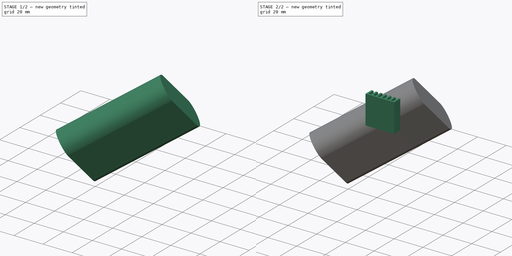
[diagram: build sequence overview — one tinted view per stage of 2, left to right]
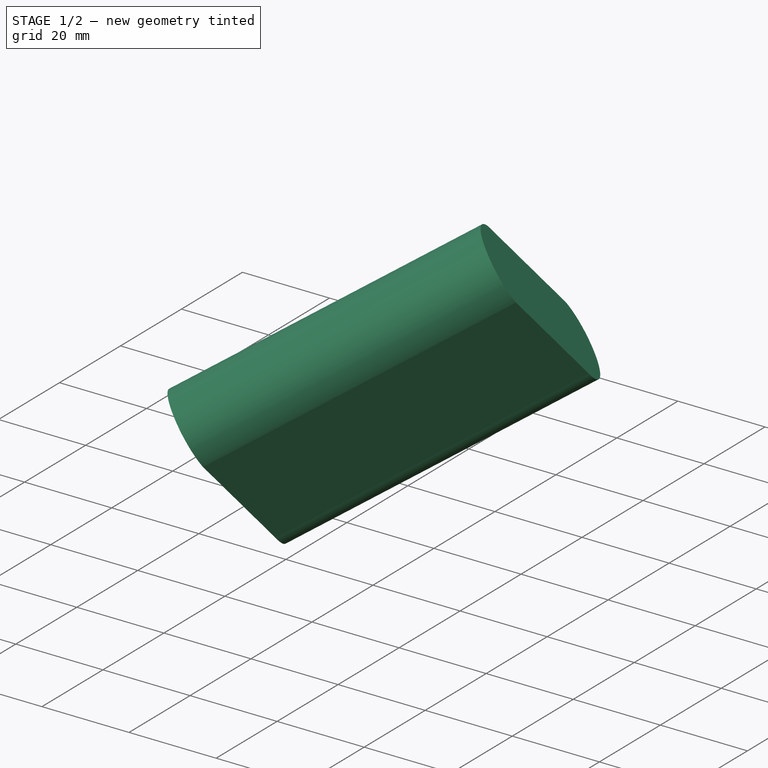
[diagram: stage 1 of 2 — iso view after this stage's code; geometry added in this stage tinted green]
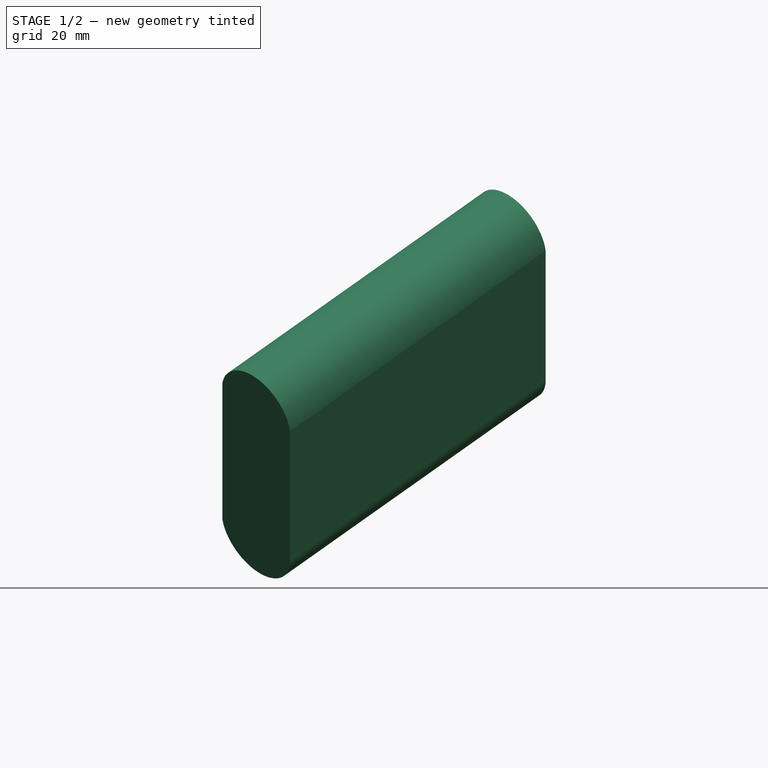
[diagram: stage 1 of 2 — front view after this stage's code; geometry added in this stage tinted green]
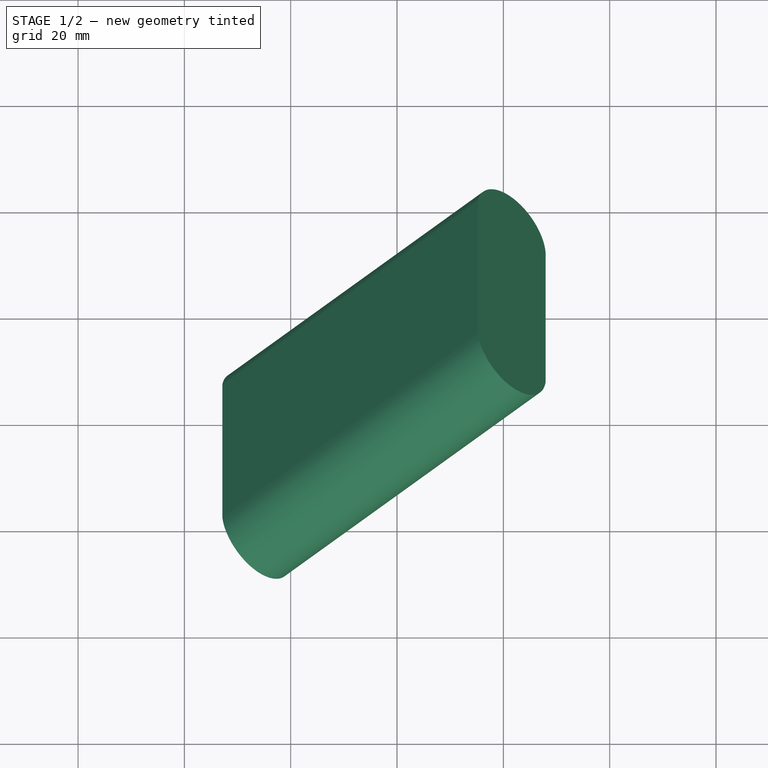
[diagram: stage 1 of 2 — top view after this stage's code; geometry added in this stage tinted green]
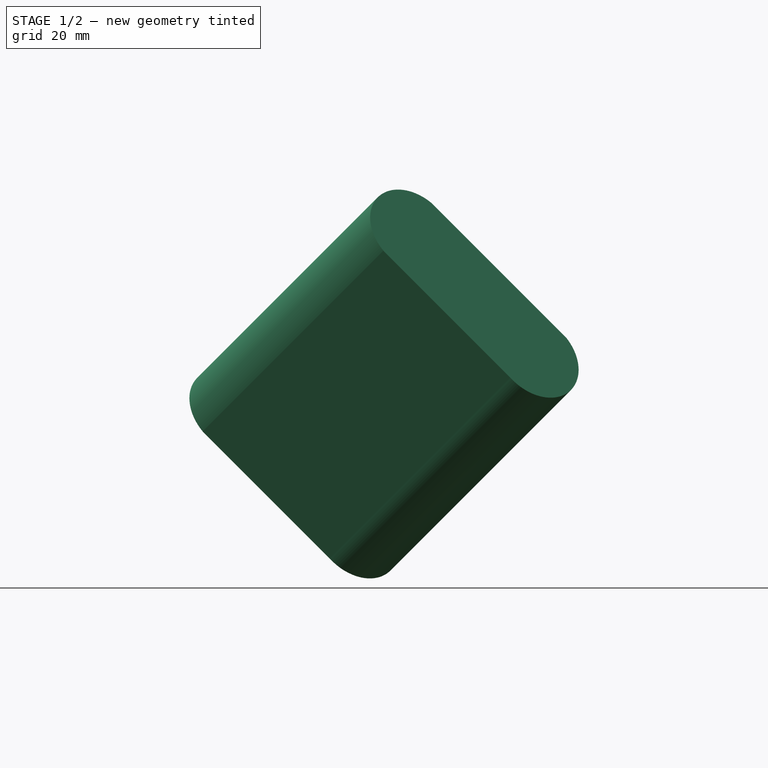
[diagram: stage 1 of 2 — right view after this stage's code; geometry added in this stage tinted green]
FCSTD DOCUMENT  (FreeCAD 0.16R5750 (Git))
Label: smallParts
License: All rights reserved
LicenseURL: http://en.wikipedia.org/wiki/All_rights_reserved
objects: Sketcher::SketchObject×4, PartDesign::Pad×2, Drawing::FeatureViewAnnotation×1, Drawing::FeaturePage×1, Part::Sweep×1, Part::Compound×1
note: 10 computed .brp shape members not serialized (recipe doc carries the construction recipe); baked Part::Feature solids carry a one-line shape summary decoded from their .brp

FEATURE [Sketcher::SketchObject] Sketch002  label="batteryProfile"
  Placement = pos=(0,0,-40) rot=(0,0,1;0rad)
  sketch-geometry (5):
    g0: ArcOfCircle CenterX=36.0797 CenterY=25.76 CenterZ=0 NormalX=0 NormalY=0 NormalZ=1 Radius=9.08394 StartAngle=1.70685 EndAngle=4.57634
    g1: ArcOfCircle CenterX=69.2305 CenterY=25.8211 CenterZ=0 NormalX=0 NormalY=0 NormalZ=1 Radius=9.08394 StartAngle=4.64154 EndAngle=7.67501
    g2: LineSegment StartX=34.8476 StartY=34.76 StartZ=0 EndX=70.8476 EndY=34.76 EndZ=0
    g3: LineSegment StartX=34.8476 StartY=16.76 StartZ=0 EndX=68.5874 EndY=16.76 EndZ=0
    g4: LineSegment [constr] StartX=34.8476 StartY=34.76 StartZ=0 EndX=34.8476 EndY=16.76 EndZ=0
  constraints (12):
    c: Coincident(g2,g0)
    c: Coincident(g2,g1)
    c: Coincident(g3,g0)
    c: Coincident(g3,g1)
    c: Equal(g0,g1)
    c: Horizontal(g2)
    c: Horizontal(g3)
    c: DistanceX(g2) = 36
    c: Coincident(g4,g0)
    c: Coincident(g4,g0)
    c: Vertical(g4)
    c: DistanceY(g4) = -18
FEATURE [Drawing::FeatureViewAnnotation] Annotation  label="DesignAnnotation"
  Font = Sans
  Rotation = 0
  Scale = 7
  Text = This project uses the Olimex Olinuxino board A10 Lime. | The Battery connector can be viewed in  the Eagle schematics. It is called LIPO_BAT | package: DW02R | library: Penko | Value:  CON2DW02R | annotation: CI01 Series 2.00 mm DIP Headers
  ViewResult = <g transform="translate(10,10) rotate(0)">\n<text id="DesignAnnotation"\n font-family="Sans"\n font-size="7"\n fill="#000000">\n<tspan x="0" dy="1em">This project uses the Olimex Olinuxino board A10 Lime.</tspan>\n<tspan x="0" dy="1em">The Battery connector can be viewed in  the Eagle schematics. It is called LIPO_BAT</tspan>\n<tspan x="0" dy="1em">package: DW02R</tspan>\n<tspan x="0" dy="1em">library: Penko</tspan>\n<tspan x="0" dy="1em">Value:  CON2DW02R</tspan>\n<tspan x="0" dy="1em">annotation: CI01 Series 2.00 mm DIP Headers</tspan>\n</text>\n</g>
  Visible = true
  X = 10
  Y = 10
FEATURE [Drawing::FeaturePage] Page
  EditableTexts = AUTHOR NAME | CREATION DATE | SUPERVISOR NAME | CHECK DATE | SCALE | WEIGHT | NUMBER | SHEET | TITLE | SUBTITLE
  Group = -> [Annotation]
FEATURE [Sketcher::SketchObject] Sketch004  label="CablePath"
  Placement = pos=(0,0,0) rot=(1,0,0;1.5708rad)
  sketch-geometry (12):
    g0: LineSegment [constr] StartX=62.3758 StartY=-39.9996 StartZ=0 EndX=74.8429 EndY=-39.9996 EndZ=0
    g1: LineSegment StartX=67.7164 StartY=-39.9996 StartZ=0 EndX=67.7164 EndY=-44.9104 EndZ=0
    g2: LineSegment StartX=68.7948 StartY=-49.6199 StartZ=0 EndX=71.192 EndY=-54.5798 EndZ=0
    g3: LineSegment StartX=72.0318 StartY=-58.2471 StartZ=0 EndX=72.0318 EndY=-64.9369 EndZ=0
    g4: ArcOfCircle CenterX=63.6044 CenterY=-58.2471 CenterZ=0 NormalX=0 NormalY=0 NormalZ=1 Radius=8.42743 StartAngle=0 EndAngle=0.450213
    g5: ArcOfCircle CenterX=78.539 CenterY=-44.9104 CenterZ=0 NormalX=0 NormalY=0 NormalZ=1 Radius=10.8226 StartAngle=3.14159 EndAngle=3.59181
    g6: LineSegment StartX=71.7163 StartY=-68.3984 StartZ=0 EndX=71.2874 EndY=-70.7314 EndZ=0
    g7: LineSegment StartX=70.1427 StartY=-74.8764 StartZ=0 EndX=68.0587 EndY=-80.4628 EndZ=0
    g8: LineSegment StartX=67.6208 StartY=-82.8894 StartZ=0 EndX=67.6208 EndY=-86.5021 EndZ=0
    g9: ArcOfCircle CenterX=52.887 CenterY=-64.9369 CenterZ=0 NormalX=0 NormalY=0 NormalZ=1 Radius=19.1448 StartAngle=6.10138 EndAngle=6.28319
    g10: ArcOfCircle CenterX=47.1251 CenterY=-66.2896 CenterZ=0 NormalX=0 NormalY=0 NormalZ=1 Radius=24.5671 StartAngle=5.92612 EndAngle=6.10138
    g11: ArcOfCircle CenterX=74.5634 CenterY=-82.8894 CenterZ=0 NormalX=0 NormalY=0 NormalZ=1 Radius=6.94256 StartAngle=2.78453 EndAngle=3.14159
  constraints (14):
    c: Horizontal(g0)
    c: Vertical(g1)
    c: Vertical(g3)
    c: Tangent(g2,g4) = 1.5708
    c: Tangent(g3,g4) = 1.5708
    c: Tangent(g1,g5) = -1.5708
    c: Tangent(g2,g5) = -1.5708
    c: Vertical(g8)
    c: Tangent(g6,g9) = 1.5708
    c: Tangent(g3,g9) = 1.5708
    c: Tangent(g7,g10) = 1.5708
    c: Tangent(g6,g10) = 1.5708
    c: Tangent(g8,g11) = -1.5708
    c: Tangent(g7,g11) = -1.5708
FEATURE [Sketcher::SketchObject] Sketch  label="CableCrossSection"
  Placement = pos=(0,0,-40) rot=(0,0,1;0rad)
  sketch-geometry (1):
    g0: Circle CenterX=67.7618 CenterY=25.497 CenterZ=0 NormalX=0 NormalY=0 NormalZ=1 Radius=0.7
  constraints (1):
    c: Radius(g0) = 0.7  'cableSectionRadius'
FEATURE [Part::Sweep] Sweep  label="CableRed"
  Frenet = false
  Sections = -> [Sketch]
  Solid = false
  Spine = -> Sketch004
  Transition = 1
FEATURE [PartDesign::Pad] Pad001  label="batteryBody"
  Length = 68
  Length2 = 100
  Placement = pos=(0,0,-40) rot=(0,0,1;0rad)
  Sketch = -> Sketch002
  Type = 0
FEATURE [Part::Compound] Compound  label="Battery"
  Links = -> [Pad001,Sketch004,Sweep,Sketch]
  Placement = pos=(0,0,0) rot=(0,0.707107,0.707107;1.5708rad)
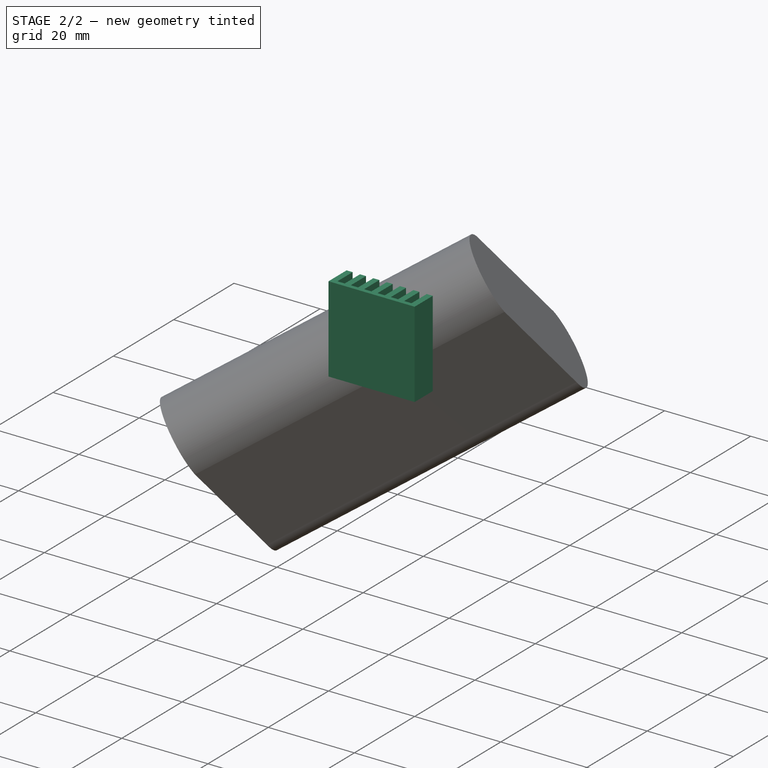
[diagram: stage 2 of 2 — iso view after this stage's code; geometry added in this stage tinted green]
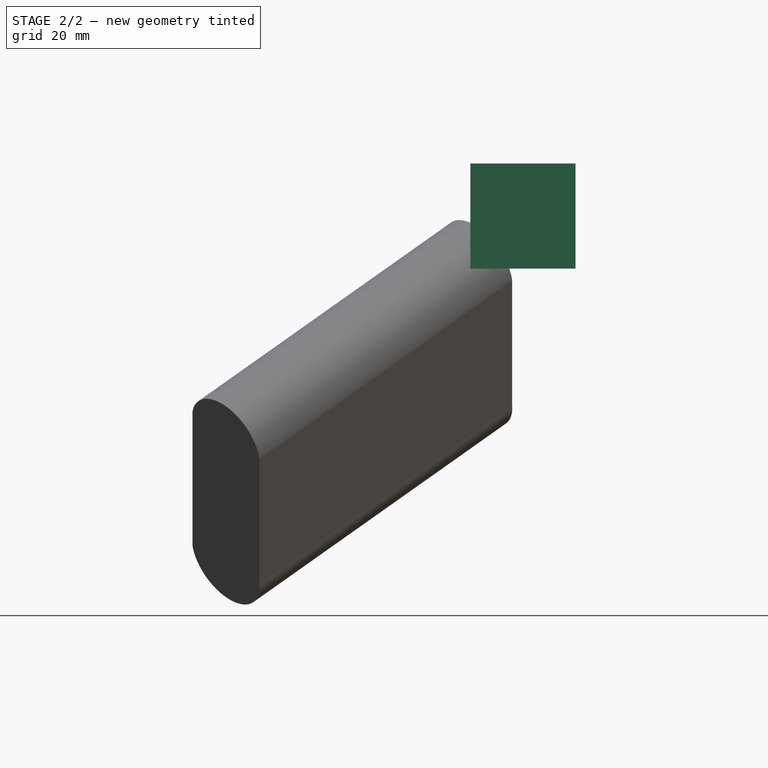
[diagram: stage 2 of 2 — front view after this stage's code; geometry added in this stage tinted green]
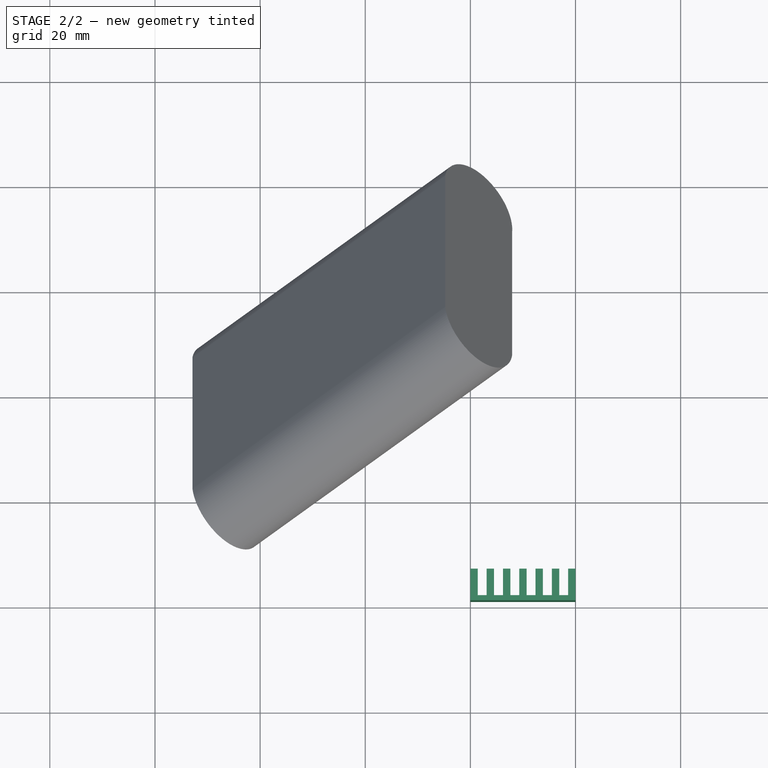
[diagram: stage 2 of 2 — top view after this stage's code; geometry added in this stage tinted green]
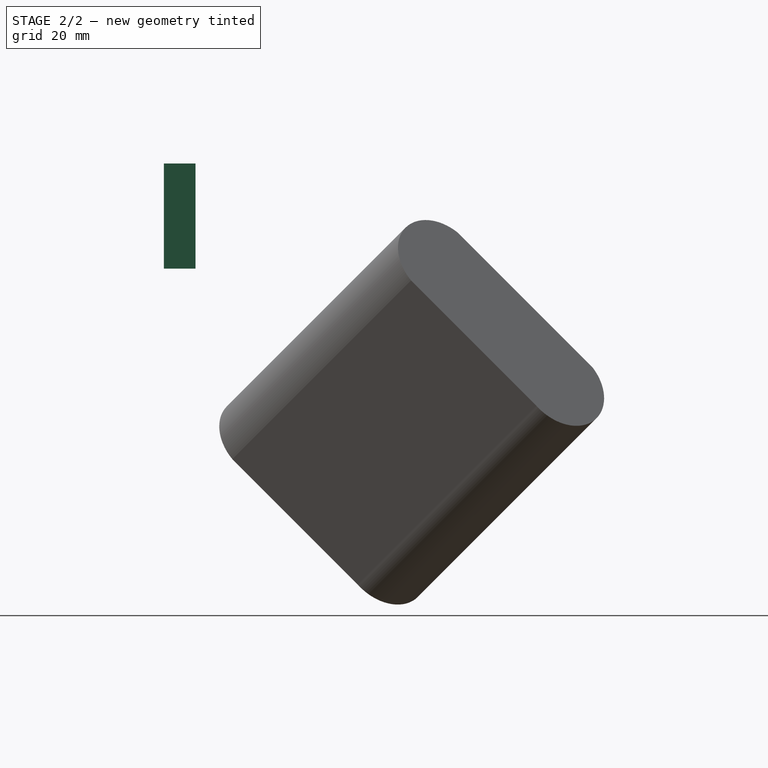
[diagram: stage 2 of 2 — right view after this stage's code; geometry added in this stage tinted green]
FEATURE [Sketcher::SketchObject] Sketch001  label="heatsinkProfile"
  sketch-geometry (28):
    g0: LineSegment StartX=0 StartY=0 StartZ=0 EndX=0 EndY=6 EndZ=0
    g1: LineSegment StartX=0 StartY=6 StartZ=0 EndX=1.4 EndY=6 EndZ=0
    g2: LineSegment StartX=1.4 StartY=6 StartZ=0 EndX=1.4 EndY=0.957608 EndZ=0
    g3: LineSegment StartX=1.4 StartY=0.957608 StartZ=0 EndX=3.1 EndY=0.957608 EndZ=0
    g4: LineSegment StartX=3.1 StartY=0.957608 StartZ=0 EndX=3.1 EndY=6 EndZ=0
    g5: LineSegment StartX=3.1 StartY=6 StartZ=0 EndX=4.5 EndY=6 EndZ=0
    g6: LineSegment StartX=4.5 StartY=6 StartZ=0 EndX=4.5 EndY=0.957608 EndZ=0
    g7: LineSegment StartX=4.5 StartY=0.957608 StartZ=0 EndX=6.2 EndY=0.957608 EndZ=0
    g8: LineSegment StartX=6.2 StartY=0.957608 StartZ=0 EndX=6.2 EndY=6 EndZ=0
    g9: LineSegment StartX=6.2 StartY=6 StartZ=0 EndX=7.6 EndY=6 EndZ=0
    g10: LineSegment StartX=7.6 StartY=6 StartZ=0 EndX=7.6 EndY=0.957608 EndZ=0
    g11: LineSegment StartX=7.6 StartY=0.957608 StartZ=0 EndX=9.3 EndY=0.957608 EndZ=0
    g12: LineSegment StartX=9.3 StartY=0.957608 StartZ=0 EndX=9.3 EndY=6 EndZ=0
    g13: LineSegment StartX=9.3 StartY=6 StartZ=0 EndX=10.7 EndY=6 EndZ=0
    g14: LineSegment StartX=10.7 StartY=6 StartZ=0 EndX=10.7 EndY=0.957608 EndZ=0
    g15: LineSegment StartX=10.7 StartY=0.957608 StartZ=0 EndX=12.4 EndY=0.957608 EndZ=0
    g16: LineSegment StartX=12.4 StartY=0.957608 StartZ=0 EndX=12.4 EndY=6 EndZ=0
    g17: LineSegment StartX=12.4 StartY=6 StartZ=0 EndX=13.8 EndY=6 EndZ=0
    g18: LineSegment StartX=13.8 StartY=6 StartZ=0 EndX=13.8 EndY=0.957608 EndZ=0
    g19: LineSegment StartX=13.8 StartY=0.957608 StartZ=0 EndX=15.5 EndY=0.957608 EndZ=0
    g20: LineSegment StartX=15.5 StartY=0.957608 StartZ=0 EndX=15.5 EndY=6 EndZ=0
    g21: LineSegment StartX=15.5 StartY=6 StartZ=0 EndX=16.9 EndY=6 EndZ=0
    g22: LineSegment StartX=16.9 StartY=6 StartZ=0 EndX=16.9 EndY=0.957608 EndZ=0
    g23: LineSegment StartX=16.9 StartY=0.957608 StartZ=0 EndX=18.6 EndY=0.957608 EndZ=0
    g24: LineSegment StartX=18.6 StartY=0.957608 StartZ=0 EndX=18.6 EndY=6 EndZ=0
    g25: LineSegment StartX=18.6 StartY=6 StartZ=0 EndX=20 EndY=6 EndZ=0
    g26: LineSegment StartX=20 StartY=6 StartZ=0 EndX=20 EndY=0 EndZ=0
    g27: LineSegment StartX=20 StartY=0 StartZ=0 EndX=0 EndY=0 EndZ=0
  constraints (83):
    c: Coincident(g-1,g0)
    c: Vertical(g0)
    c: Coincident(g0,g1)
    c: Coincident(g1,g2)
    c: Vertical(g2)
    c: Coincident(g2,g3)
    c: Horizontal(g3)
    c: Coincident(g3,g4)
    c: Vertical(g4)
    c: Coincident(g4,g5)
    c: Coincident(g5,g6)
    c: Vertical(g6)
    c: Coincident(g6,g7)
    c: Horizontal(g7)
    c: Coincident(g7,g8)
    c: Vertical(g8)
    c: Coincident(g8,g9)
    c: Coincident(g9,g10)
    c: Vertical(g10)
    c: Coincident(g10,g11)
    c: Coincident(g11,g12)
    c: Vertical(g12)
    c: Coincident(g12,g13)
    c: Coincident(g13,g14)
    c: Vertical(g14)
    c: Coincident(g14,g15)
    c: Coincident(g15,g16)
    c: Vertical(g16)
    c: Coincident(g16,g17)
    c: Coincident(g17,g18)
    c: Vertical(g18)
    c: Coincident(g18,g19)
    c: Coincident(g19,g20)
    c: Vertical(g20)
    c: Coincident(g20,g21)
    c: Coincident(g21,g22)
    c: Coincident(g22,g23)
    c: Coincident(g23,g24)
    c: Coincident(g24,g25)
    c: Coincident(g25,g26)
    c: Coincident(g26,g27)
    c: Coincident(g27,g0)
    c: Horizontal(g27)
    c: Equal(g0,g26)
    c: Equal(g1,g5)
    c: Equal(g5,g9)
    c: Equal(g9,g13)
    c: Equal(g13,g17)
    c: Equal(g17,g21)
    c: Equal(g21,g25)
    c: Equal(g3,g7)
    c: Equal(g7,g11)
    c: Equal(g11,g15)
    c: Equal(g15,g19)
    c: Equal(g19,g23)
    c: Horizontal(g1)
    c: Horizontal(g5)
    c: Horizontal(g9)
    c: Horizontal(g13)
    c: Horizontal(g17)
    c: Horizontal(g21)
    c: Horizontal(g25)
    c: Horizontal(g23)
    c: Horizontal(g19)
    c: Horizontal(g15)
    c: Horizontal(g11)
    c: Vertical(g22)
    c: Vertical(g24)
    c: Vertical(g26)
    c: DistanceY(g0) = 6
    c: DistanceX(g27) = -20
    c: Equal(g2,g4)
    c: Equal(g4,g6)
    c: Equal(g6,g8)
    c: Equal(g8,g10)
    c: Equal(g10,g12)
    c: Equal(g12,g14)
    c: Equal(g14,g16)
    c: Equal(g16,g18)
    c: Equal(g18,g20)
    c: Equal(g20,g22)
    c: Equal(g22,g24)
    c: DistanceX(g1) = 1.4
FEATURE [PartDesign::Pad] Pad  label="heatsink001"
  Length = 20
  Length2 = 100
  Sketch = -> Sketch001
  Type = 0
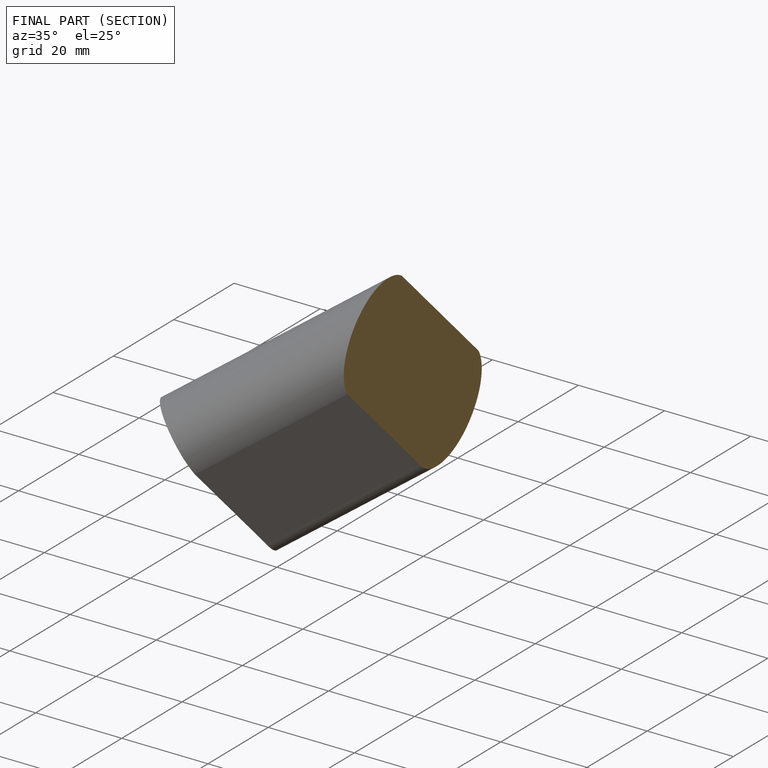
[diagram: finished part — half-section view (interior)]
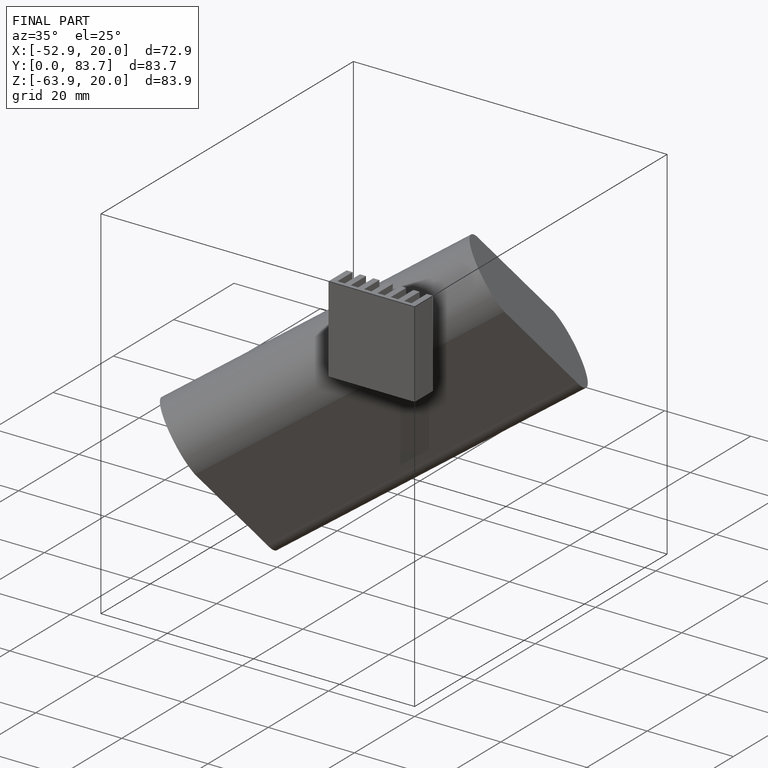
[diagram: finished part — iso view with bounding-box wireframe]
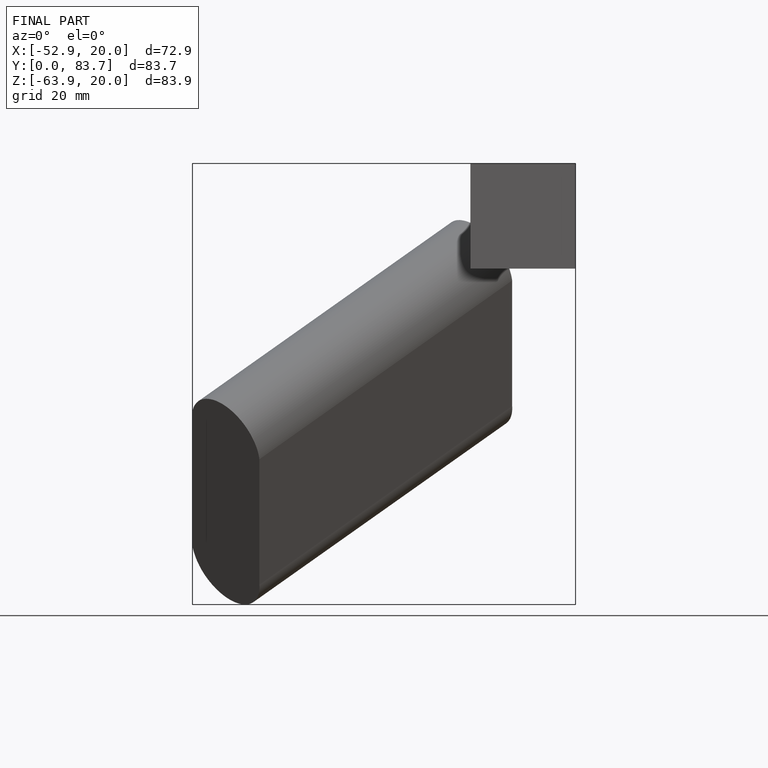
[diagram: finished part — front view with bounding-box wireframe]
